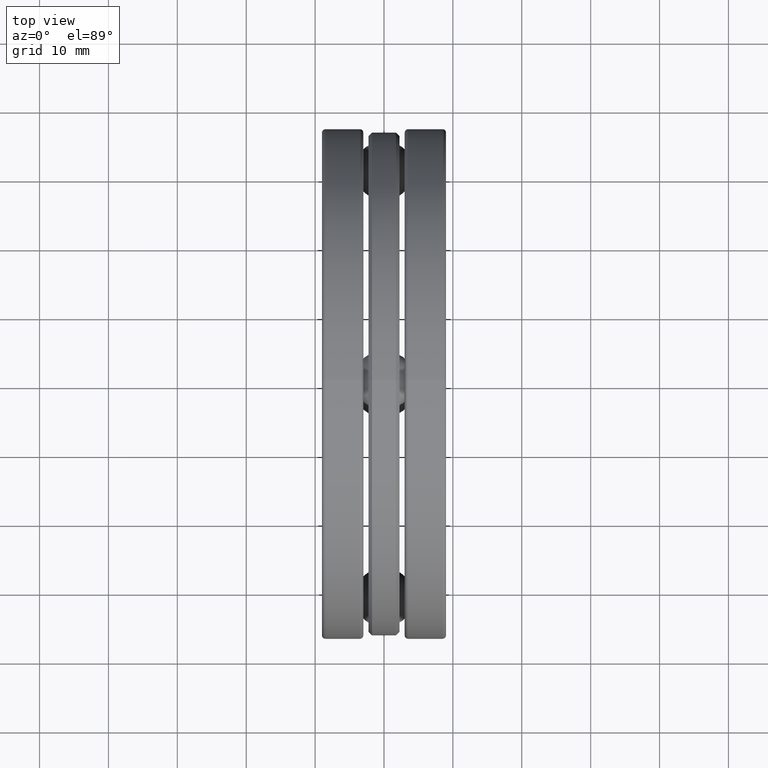
[diagram: clean part render]
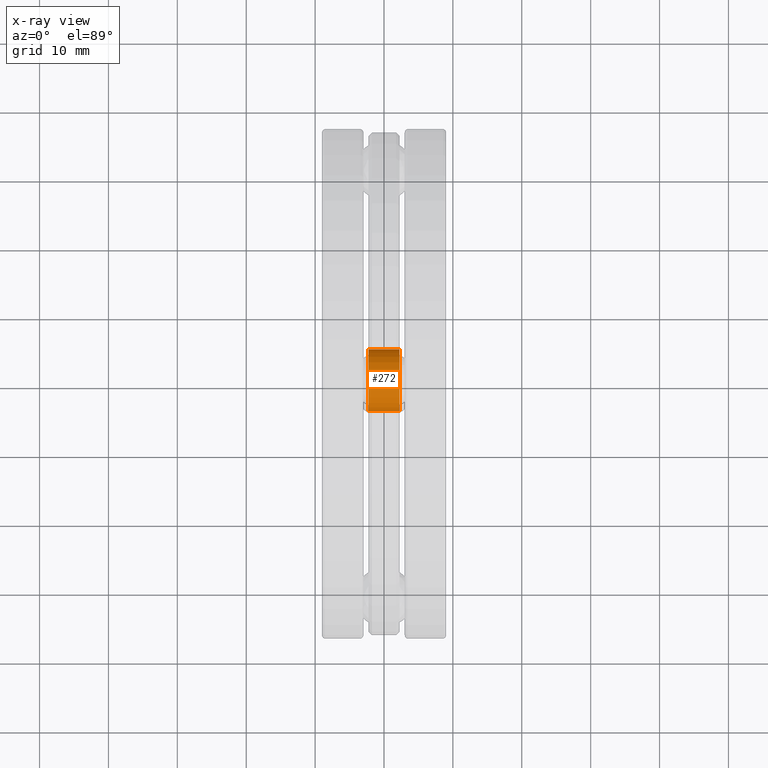
[diagram: x-ray — body ghosted, one internal face saturated and labeled with its STEP entity id]
A machine part, top view, then the same camera in x-ray: the body is ghosted and one INTERNAL B-rep face — a face not visible from any outside direction — is saturated and labeled: STEP entity #272.
In plain terms, the highlighted cylindrical surface (bore or boss wall) has radius 4.4831 mm, axis along (1, 0, 0).
Its self-contained STEP definition (entity closure, byte-faithful):
#8 = AXIS2_PLACEMENT_3D ( 'NONE', #29, #213, #718 ) ;
#29 = CARTESIAN_POINT ( 'NONE',  ( 0.08862500000000002300, 1.278405892217413100E-014, 1.220499999999999700 ) ) ;
#90 = CYLINDRICAL_SURFACE ( 'NONE', #168, 0.1765000000000000200 ) ;
#137 = ORIENTED_EDGE ( 'NONE', *, *, #488, .T. ) ;
#152 = CIRCLE ( 'NONE', #641, 0.1765000000000000200 ) ;
#168 = AXIS2_PLACEMENT_3D ( 'NONE', #589, #525, #795 ) ;
#213 = DIRECTION ( 'NONE',  ( 1.000000000000000000, 0.0000000000000000000, 0.0000000000000000000 ) ) ;
#241 = DIRECTION ( 'NONE',  ( -1.000000000000000000, -0.0000000000000000000, -0.0000000000000000000 ) ) ;
#272 = ADVANCED_FACE ( 'NONE', ( #361, #690 ), #90, .F. ) ;
#282 = ORIENTED_EDGE ( 'NONE', *, *, #444, .T. ) ;
#361 = FACE_OUTER_BOUND ( 'NONE', #422, .T. ) ;
#403 = VERTEX_POINT ( 'NONE', #790 ) ;
#422 = EDGE_LOOP ( 'NONE', ( #282 ) ) ;
#444 = EDGE_CURVE ( 'NONE', #403, #403, #682, .T. ) ;
#467 = CARTESIAN_POINT ( 'NONE',  ( -0.08862499999999996800, 0.1765000000000127900, 1.220499999999997900 ) ) ;
#488 = EDGE_CURVE ( 'NONE', #789, #789, #152, .T. ) ;
#525 = DIRECTION ( 'NONE',  ( 1.000000000000000000, 0.0000000000000000000, 0.0000000000000000000 ) ) ;
#536 = CARTESIAN_POINT ( 'NONE',  ( -0.08862499999999996800, 1.278405892217413100E-014, 1.220499999999999700 ) ) ;
#589 = CARTESIAN_POINT ( 'NONE',  ( -0.3545393700787399800, 1.278405892217413100E-014, 1.220499999999999700 ) ) ;
#641 = AXIS2_PLACEMENT_3D ( 'NONE', #536, #241, #669 ) ;
#669 = DIRECTION ( 'NONE',  ( 0.0000000000000000000, 1.000000000000000000, -1.083452462076478100E-014 ) ) ;
#682 = CIRCLE ( 'NONE', #8, 0.1765000000000000200 ) ;
#690 = FACE_OUTER_BOUND ( 'NONE', #738, .T. ) ;
#718 = DIRECTION ( 'NONE',  ( 0.0000000000000000000, 1.000000000000000000, -1.083452462076478100E-014 ) ) ;
#738 = EDGE_LOOP ( 'NONE', ( #137 ) ) ;
#789 = VERTEX_POINT ( 'NONE', #467 ) ;
#790 = CARTESIAN_POINT ( 'NONE',  ( 0.08862500000000002300, 0.1765000000000127900, 1.220499999999997900 ) ) ;
#795 = DIRECTION ( 'NONE',  ( 0.0000000000000000000, 1.000000000000000000, -1.083452462076478100E-014 ) ) ;